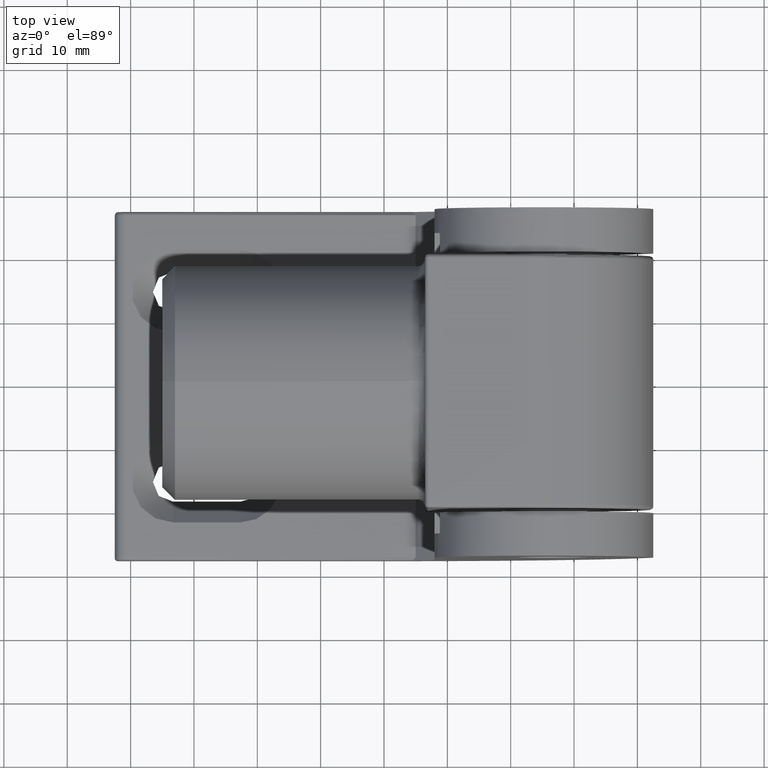
[diagram: clean part render]
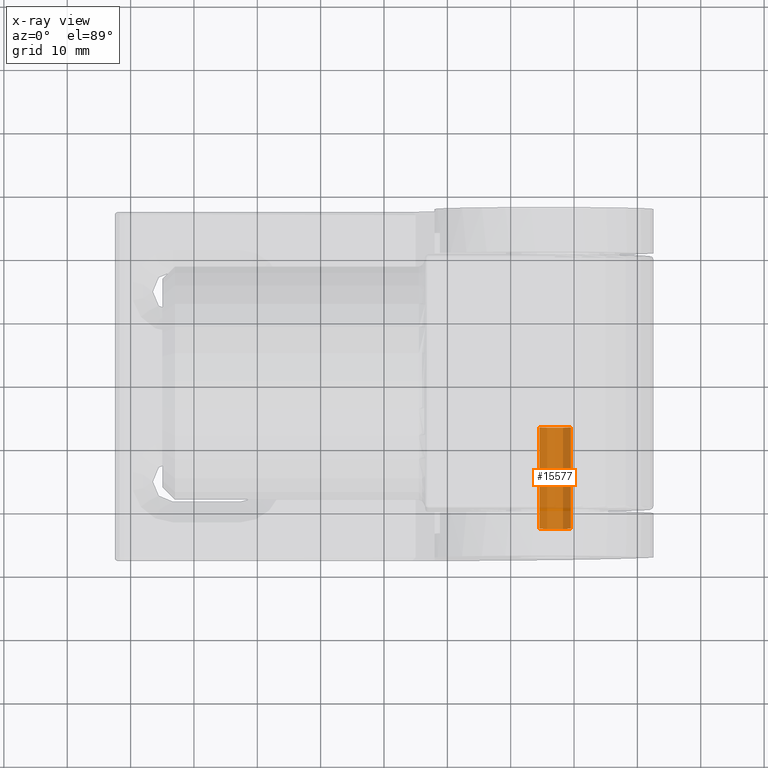
[diagram: x-ray — body ghosted, one internal face saturated and labeled with its STEP entity id]
A machine part, top view, then the same camera in x-ray: the body is ghosted and one INTERNAL B-rep face — a face not visible from any outside direction — is saturated and labeled: STEP entity #15577.
In plain terms, the highlighted cylindrical surface (edge-blend (fillet) strip) has radius 2.5 mm, axis along (0, -1, 0).
Its self-contained STEP definition (entity closure, byte-faithful):
#449 = CARTESIAN_POINT ( 'NONE',  ( -2.428612866367529932E-14, -6.999999999999999112, -20.50000000000000355 ) ) ;
#2500 = CARTESIAN_POINT ( 'NONE',  ( -2.428612866367529932E-14, -23.00000000000000711, -22.99999999999999645 ) ) ;
#2806 = CARTESIAN_POINT ( 'NONE',  ( -2.428612866367529932E-14, -23.00000000000000711, -20.50000000000000355 ) ) ;
#2901 = VECTOR ( 'NONE', #25242, 1000.000000000000000 ) ;
#3618 = CARTESIAN_POINT ( 'NONE',  ( -2.428612866367529932E-14, -23.50000000000000000, -22.99999999999999645 ) ) ;
#3753 = ORIENTED_EDGE ( 'NONE', *, *, #4917, .F. ) ;
#4339 = EDGE_CURVE ( 'NONE', #12931, #21991, #5073, .T. ) ;
#4862 = DIRECTION ( 'NONE',  ( -0.000000000000000000, -1.000000000000000000, -0.000000000000000000 ) ) ;
#4917 = EDGE_CURVE ( 'NONE', #19354, #21991, #22470, .T. ) ;
#5073 = CIRCLE ( 'NONE', #9846, 2.499999999999992006 ) ;
#5425 = AXIS2_PLACEMENT_3D ( 'NONE', #449, #16096, #20022 ) ;
#5688 = ORIENTED_EDGE ( 'NONE', *, *, #13164, .F. ) ;
#9330 = DIRECTION ( 'NONE',  ( 0.000000000000000000, -1.000000000000000000, 0.000000000000000000 ) ) ;
#9487 = CIRCLE ( 'NONE', #5425, 2.499999999999995115 ) ;
#9846 = AXIS2_PLACEMENT_3D ( 'NONE', #2806, #4862, #14752 ) ;
#10184 = CARTESIAN_POINT ( 'NONE',  ( -2.428612866367529932E-14, -6.999999999999999112, -23.00000000000000000 ) ) ;
#11189 = EDGE_LOOP ( 'NONE', ( #5688, #11872, #16294, #3753 ) ) ;
#11518 = CARTESIAN_POINT ( 'NONE',  ( -2.397996696388846145E-14, -6.999999999999999112, -18.00000000000001066 ) ) ;
#11872 = ORIENTED_EDGE ( 'NONE', *, *, #16565, .T. ) ;
#12931 = VERTEX_POINT ( 'NONE', #19167 ) ;
#13164 = EDGE_CURVE ( 'NONE', #13510, #19354, #9487, .T. ) ;
#13510 = VERTEX_POINT ( 'NONE', #11518 ) ;
#13836 = CARTESIAN_POINT ( 'NONE',  ( -2.428612866367529932E-14, -23.50000000000000000, -20.50000000000000355 ) ) ;
#14752 = DIRECTION ( 'NONE',  ( 0.000000000000000000, 0.000000000000000000, 1.000000000000000000 ) ) ;
#15548 = CYLINDRICAL_SURFACE ( 'NONE', #24461, 2.499999999999992006 ) ;
#15577 = ADVANCED_FACE ( 'NONE', ( #20453 ), #15548, .F. ) ;
#15830 = DIRECTION ( 'NONE',  ( 0.000000000000000000, 0.000000000000000000, -1.000000000000000000 ) ) ;
#16096 = DIRECTION ( 'NONE',  ( 0.000000000000000000, -1.000000000000000000, 0.000000000000000000 ) ) ;
#16183 = LINE ( 'NONE', #24759, #23824 ) ;
#16294 = ORIENTED_EDGE ( 'NONE', *, *, #4339, .T. ) ;
#16565 = EDGE_CURVE ( 'NONE', #13510, #12931, #16183, .T. ) ;
#19167 = CARTESIAN_POINT ( 'NONE',  ( -2.397996696388846145E-14, -23.00000000000000711, -18.00000000000001421 ) ) ;
#19354 = VERTEX_POINT ( 'NONE', #10184 ) ;
#20022 = DIRECTION ( 'NONE',  ( 0.000000000000000000, 0.000000000000000000, -1.000000000000000000 ) ) ;
#20453 = FACE_OUTER_BOUND ( 'NONE', #11189, .T. ) ;
#21991 = VERTEX_POINT ( 'NONE', #2500 ) ;
#22470 = LINE ( 'NONE', #3618, #2901 ) ;
#23824 = VECTOR ( 'NONE', #9330, 1000.000000000000000 ) ;
#23868 = DIRECTION ( 'NONE',  ( 0.000000000000000000, -1.000000000000000000, 0.000000000000000000 ) ) ;
#24461 = AXIS2_PLACEMENT_3D ( 'NONE', #13836, #23868, #15830 ) ;
#24759 = CARTESIAN_POINT ( 'NONE',  ( -2.397996696388846145E-14, -23.50000000000000000, -18.00000000000001421 ) ) ;
#25242 = DIRECTION ( 'NONE',  ( 0.000000000000000000, -1.000000000000000000, 0.000000000000000000 ) ) ;